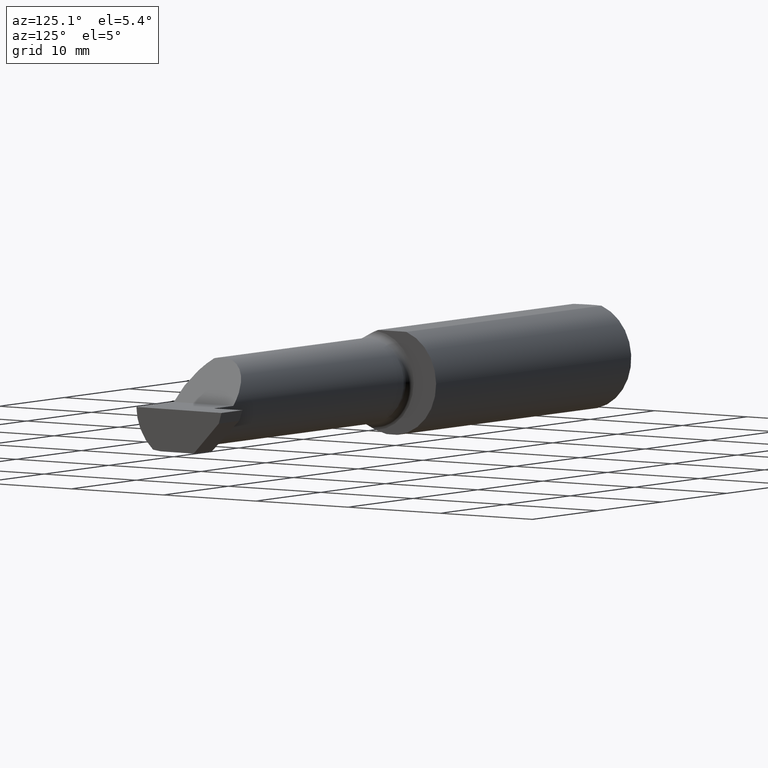
[diagram: clean part render]
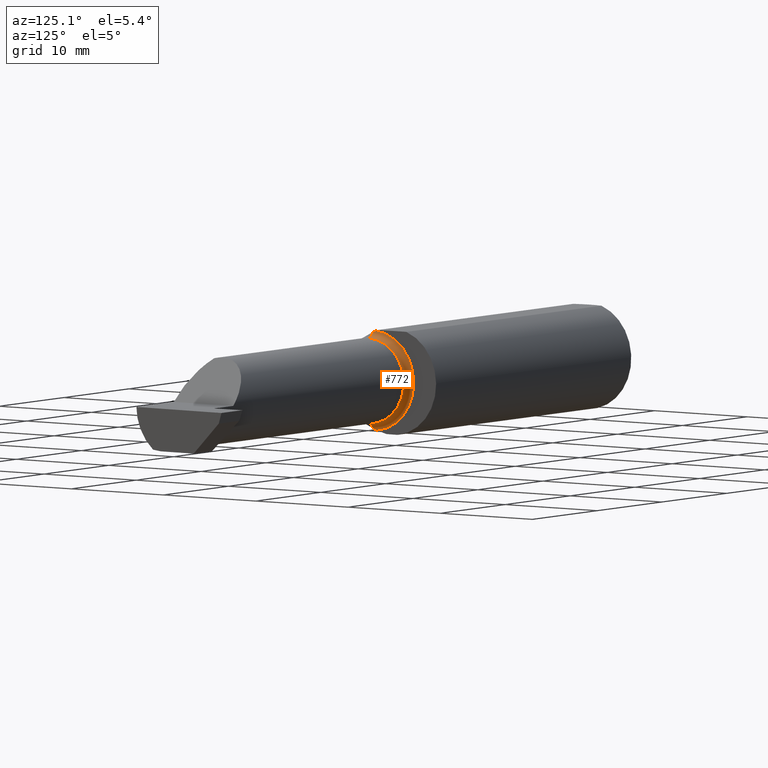
[diagram: same view with one face highlighted and labeled with its STEP entity id]
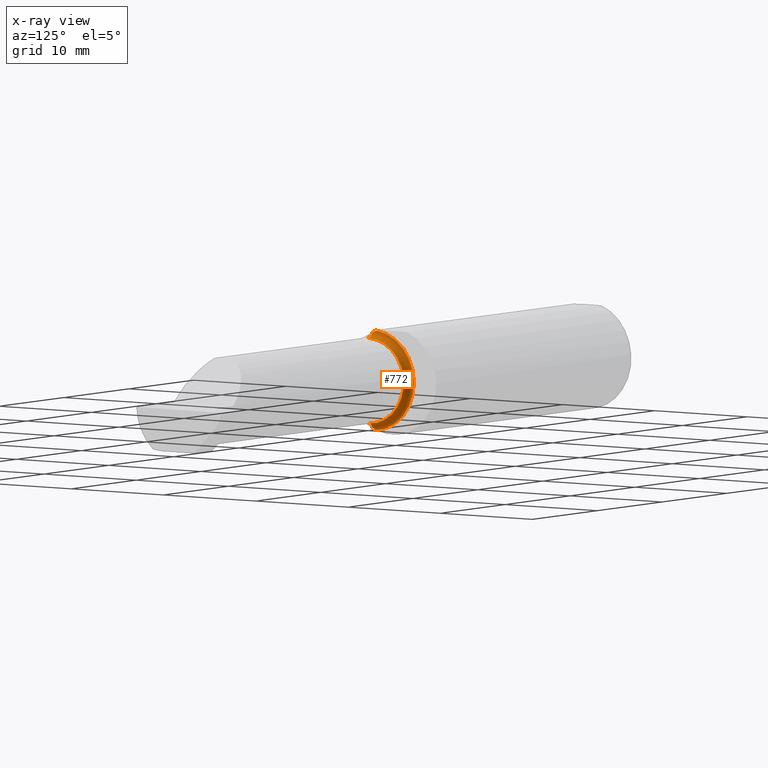
[diagram: x-ray of the same camera — body ghosted, the highlighted face saturated]
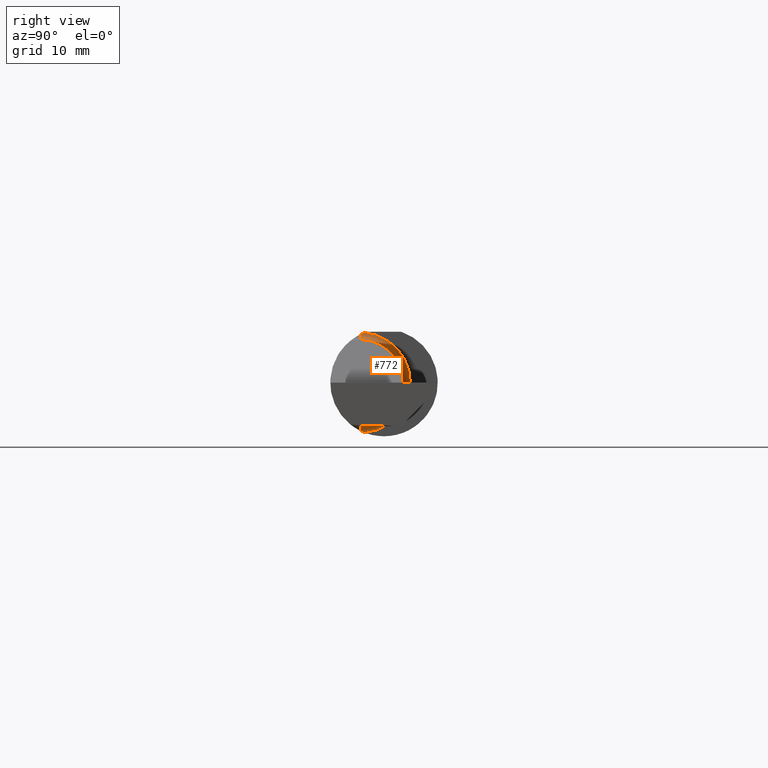
[diagram: same view with one face highlighted and labeled with its STEP entity id]
A machine part, auxiliary view. The second image highlights one B-rep face of the part: STEP entity #772.
The next image is the same camera in x-ray: the body ghosted, the highlighted face saturated — about 0% of this face is hidden behind the body in this view.
A second angle (right view) of the same face is appended — the face is thin or edge-on in the first view.
In plain terms, the highlighted toroidal blend (fillet) surface has major radius 4.445 mm and minor (blend) radius 0.635 mm.
Its self-contained STEP definition (entity closure, byte-faithful):
#8 = CARTESIAN_POINT ( 'NONE',  ( 1.225000000000000089, -0.08334999999999996578, 0.000000000000000000 ) ) ;
#29 = CARTESIAN_POINT ( 'NONE',  ( 1.199999999999999956, -0.06851976604679065053, -0.1743704796142198643 ) ) ;
#43 = AXIS2_PLACEMENT_3D ( 'NONE', #118, #509, #932 ) ;
#83 = AXIS2_PLACEMENT_3D ( 'NONE', #723, #891, #954 ) ;
#84 = CARTESIAN_POINT ( 'NONE',  ( 1.201062863587533780, -0.08334999999998816966, 0.1677879614275171183 ) ) ;
#111 = ORIENTED_EDGE ( 'NONE', *, *, #127, .F. ) ;
#118 = CARTESIAN_POINT ( 'NONE',  ( 1.225000000000000089, -0.08334999999999995191, 0.000000000000000000 ) ) ;
#120 = ORIENTED_EDGE ( 'NONE', *, *, #1005, .T. ) ;
#124 = TOROIDAL_SURFACE ( 'NONE', #43, 0.1749999999999999889, 0.02500000000000007772 ) ;
#127 = EDGE_CURVE ( 'NONE', #161, #274, #914, .T. ) ;
#139 = EDGE_CURVE ( 'NONE', #547, #808, #537, .T. ) ;
#142 = B_SPLINE_CURVE_WITH_KNOTS ( 'NONE', 3,
 ( #406, #179, #848, #601 ),
 .UNSPECIFIED., .F., .F.,
 ( 4, 4 ),
 ( 4.423516731080792778E-05, 0.0004561457252213476873 ),
 .UNSPECIFIED. ) ;
#161 = VERTEX_POINT ( 'NONE', #810 ) ;
#173 = EDGE_CURVE ( 'NONE', #675, #274, #580, .T. ) ;
#179 = CARTESIAN_POINT ( 'NONE',  ( 1.199999999999999734, -0.07360907839729498303, 0.1723706084642000480 ) ) ;
#208 = CIRCLE ( 'NONE', #701, 0.02500000000000007425 ) ;
#228 = CARTESIAN_POINT ( 'NONE',  ( 1.199999999999999956, -0.08334999999999996578, 0.000000000000000000 ) ) ;
#234 = DIRECTION ( 'NONE',  ( 0.000000000000000000, 0.000000000000000000, 1.000000000000000000 ) ) ;
#241 = CARTESIAN_POINT ( 'NONE',  ( 1.199999999999999956, -0.06851976604679065053, -0.1743704796142198643 ) ) ;
#274 = VERTEX_POINT ( 'NONE', #29 ) ;
#281 = CARTESIAN_POINT ( 'NONE',  ( 1.201062863587535334, -0.08334999999999988252, -0.1677879614275112896 ) ) ;
#337 = VERTEX_POINT ( 'NONE', #861 ) ;
#372 = CARTESIAN_POINT ( 'NONE',  ( 1.225000000000000089, -0.08334999999999996578, 0.1499999999999999667 ) ) ;
#399 = AXIS2_PLACEMENT_3D ( 'NONE', #228, #565, #555 ) ;
#406 = CARTESIAN_POINT ( 'NONE',  ( 1.199999999999999956, -0.06851976604679065053, 0.1743704796142198643 ) ) ;
#479 = DIRECTION ( 'NONE',  ( -1.000000000000000000, -0.000000000000000000, -0.000000000000000000 ) ) ;
#480 = ORIENTED_EDGE ( 'NONE', *, *, #173, .T. ) ;
#509 = DIRECTION ( 'NONE',  ( -1.000000000000000000, -0.000000000000000000, -0.000000000000000000 ) ) ;
#517 = EDGE_LOOP ( 'NONE', ( #641, #480, #111, #120, #992, #904 ) ) ;
#526 = CIRCLE ( 'NONE', #667, 0.1499999999999999667 ) ;
#537 = CIRCLE ( 'NONE', #83, 0.02500000000000007425 ) ;
#547 = VERTEX_POINT ( 'NONE', #84 ) ;
#555 = DIRECTION ( 'NONE',  ( 0.000000000000000000, 0.000000000000000000, 1.000000000000000000 ) ) ;
#565 = DIRECTION ( 'NONE',  ( -1.000000000000000000, -0.000000000000000000, -0.000000000000000000 ) ) ;
#569 = CARTESIAN_POINT ( 'NONE',  ( 1.199999999999999956, -0.07359296612170562746, -0.1723769398647691520 ) ) ;
#580 = B_SPLINE_CURVE_WITH_KNOTS ( 'NONE', 3,
 ( #966, #895, #569, #241 ),
 .UNSPECIFIED., .F., .F.,
 ( 4, 4 ),
 ( 0.001278539404338888737, 0.001694873732696236101 ),
 .UNSPECIFIED. ) ;
#601 = CARTESIAN_POINT ( 'NONE',  ( 1.201062863587533780, -0.08334999999998816966, 0.1677879614275171183 ) ) ;
#641 = ORIENTED_EDGE ( 'NONE', *, *, #859, .F. ) ;
#667 = AXIS2_PLACEMENT_3D ( 'NONE', #8, #479, #731 ) ;
#675 = VERTEX_POINT ( 'NONE', #281 ) ;
#701 = AXIS2_PLACEMENT_3D ( 'NONE', #967, #892, #234 ) ;
#723 = CARTESIAN_POINT ( 'NONE',  ( 1.225000000000000089, -0.08334999999999995191, 0.1749999999999999889 ) ) ;
#731 = DIRECTION ( 'NONE',  ( 0.000000000000000000, 0.000000000000000000, 1.000000000000000000 ) ) ;
#772 = ADVANCED_FACE ( 'NONE', ( #777 ), #124, .F. ) ;
#777 = FACE_OUTER_BOUND ( 'NONE', #517, .T. ) ;
#808 = VERTEX_POINT ( 'NONE', #372 ) ;
#810 = CARTESIAN_POINT ( 'NONE',  ( 1.199999999999999956, -0.06851976604679065053, 0.1743704796142198643 ) ) ;
#847 = EDGE_CURVE ( 'NONE', #808, #337, #526, .T. ) ;
#848 = CARTESIAN_POINT ( 'NONE',  ( 1.200344683557281300, -0.07855153123406184712, 0.1701716388274757408 ) ) ;
#859 = EDGE_CURVE ( 'NONE', #675, #337, #208, .T. ) ;
#861 = CARTESIAN_POINT ( 'NONE',  ( 1.225000000000000089, -0.08334999999999995191, -0.1499999999999999667 ) ) ;
#891 = DIRECTION ( 'NONE',  ( 0.000000000000000000, -1.000000000000000000, 0.000000000000000000 ) ) ;
#892 = DIRECTION ( 'NONE',  ( -0.000000000000000000, 1.000000000000000000, 1.224646799147353207E-16 ) ) ;
#895 = CARTESIAN_POINT ( 'NONE',  ( 1.200346246588684940, -0.07856197451716394331, -0.1701664510438046507 ) ) ;
#904 = ORIENTED_EDGE ( 'NONE', *, *, #847, .T. ) ;
#914 = CIRCLE ( 'NONE', #399, 0.1749999999999999889 ) ;
#932 = DIRECTION ( 'NONE',  ( 0.000000000000000000, 0.000000000000000000, 1.000000000000000000 ) ) ;
#954 = DIRECTION ( 'NONE',  ( 0.000000000000000000, 0.000000000000000000, -1.000000000000000000 ) ) ;
#966 = CARTESIAN_POINT ( 'NONE',  ( 1.201062863587535334, -0.08334999999999988252, -0.1677879614275112896 ) ) ;
#967 = CARTESIAN_POINT ( 'NONE',  ( 1.225000000000000089, -0.08334999999999992415, -0.1749999999999999889 ) ) ;
#992 = ORIENTED_EDGE ( 'NONE', *, *, #139, .T. ) ;
#1005 = EDGE_CURVE ( 'NONE', #161, #547, #142, .T. ) ;